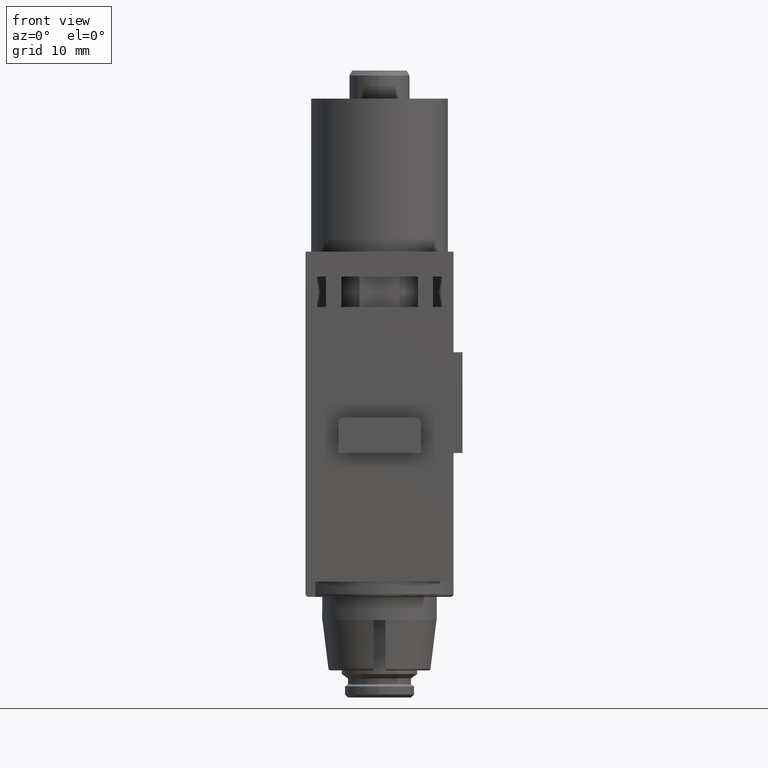
[diagram: clean part render]
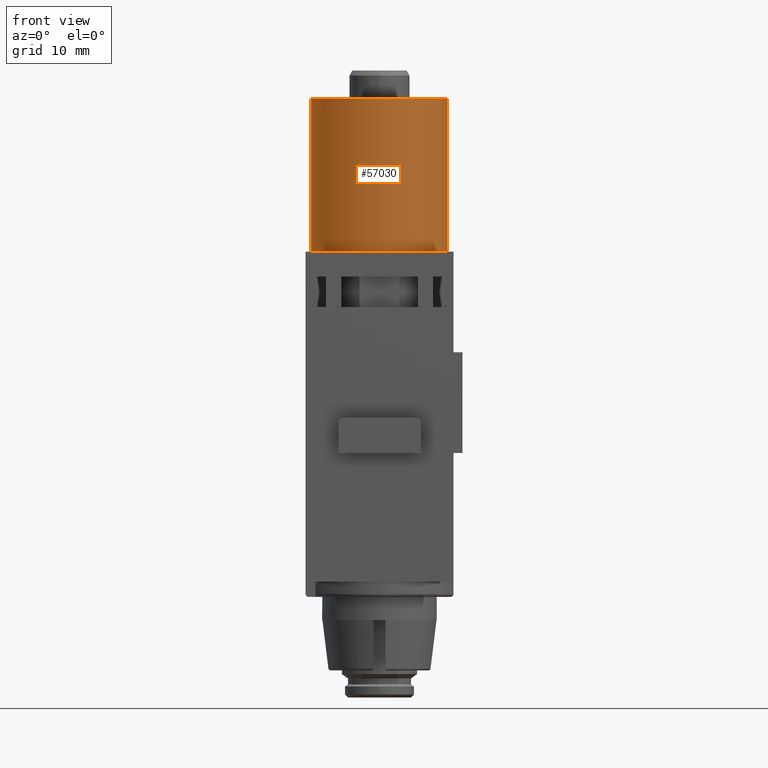
[diagram: same view with one face highlighted and labeled with its STEP entity id]
A machine part, front view. The second image highlights one B-rep face of the part: STEP entity #57030.
In plain terms, the highlighted cylindrical surface (partial cylindrical patch) has radius 6.8 mm, axis along (-0, 0, -1).
Its self-contained STEP definition (entity closure, byte-faithful):
#10070=CARTESIAN_POINT('',(66.6468229999998,59.9545149999994,
0.40000000000002));
#10080=DIRECTION('',(-2.44929359829471E-16,5.13672052494679E-16,-1.));
#10090=DIRECTION('',(2.4492935982947E-16,-1.,-5.13672052494679E-16));
#10100=AXIS2_PLACEMENT_3D('',#10070,#10080,#10090);
#10110=CIRCLE('',#10100,6.79999999999992);
#10120=CARTESIAN_POINT('',(68.6468229999997,66.4537457237081,
0.400000000000063));
#10130=VERTEX_POINT('',#10120);
#10140=CARTESIAN_POINT('',(64.6468229999997,66.453745723708,
0.40000000000007));
#10150=VERTEX_POINT('',#10140);
#10160=EDGE_CURVE('',#10130,#10150,#10110,.T.);
#40900=CARTESIAN_POINT('',(68.6468229999997,66.4537457237081,
-14.7999999999997));
#40910=VERTEX_POINT('',#40900);
#41580=CARTESIAN_POINT('',(64.6468229999997,66.453745723708,
-14.7999999999997));
#41590=VERTEX_POINT('',#41580);
#41620=CARTESIAN_POINT('',(66.6468229999997,59.9545149999994,
-14.7999999999997));
#41630=DIRECTION('',(-2.44929359829471E-16,5.13672052494679E-16,-1.));
#41640=DIRECTION('',(2.4492935982947E-16,-1.,-5.13672052494679E-16));
#41650=AXIS2_PLACEMENT_3D('',#41620,#41630,#41640);
#41660=CIRCLE('',#41650,6.79999999999992);
#41670=EDGE_CURVE('',#40910,#41590,#41660,.T.);
#56820=CARTESIAN_POINT('',(66.6468229999998,59.9545149999994,
0.200000000000372));
#56830=DIRECTION('',(-2.44929359829471E-16,5.13672052494679E-16,-1.));
#56840=DIRECTION('',(2.4492935982947E-16,-1.,-5.13672052494679E-16));
#56850=AXIS2_PLACEMENT_3D('',#56820,#56830,#56840);
#56860=CYLINDRICAL_SURFACE('',#56850,6.79999999999992);
#56870=CARTESIAN_POINT('',(68.6468229999997,66.4537457237081,
0.200000000000372));
#56880=DIRECTION('',(-2.44929359829471E-16,5.13672052494679E-16,-1.));
#56890=VECTOR('',#56880,1.);
#56900=LINE('',#56870,#56890);
#56910=EDGE_CURVE('',#10130,#40910,#56900,.T.);
#56920=ORIENTED_EDGE('',*,*,#56910,.F.);
#56930=ORIENTED_EDGE('',*,*,#41670,.F.);
#56940=CARTESIAN_POINT('',(64.6468229999997,66.453745723708,
0.200000000000379));
#56950=DIRECTION('',(-2.44929359829471E-16,5.13672052494679E-16,-1.));
#56960=VECTOR('',#56950,1.);
#56970=LINE('',#56940,#56960);
#56980=EDGE_CURVE('',#10150,#41590,#56970,.T.);
#56990=ORIENTED_EDGE('',*,*,#56980,.T.);
#57000=ORIENTED_EDGE('',*,*,#10160,.T.);
#57010=EDGE_LOOP('',(#57000,#56990,#56930,#56920));
#57020=FACE_OUTER_BOUND('',#57010,.T.);
#57030=ADVANCED_FACE('',(#57020),#56860,.T.);